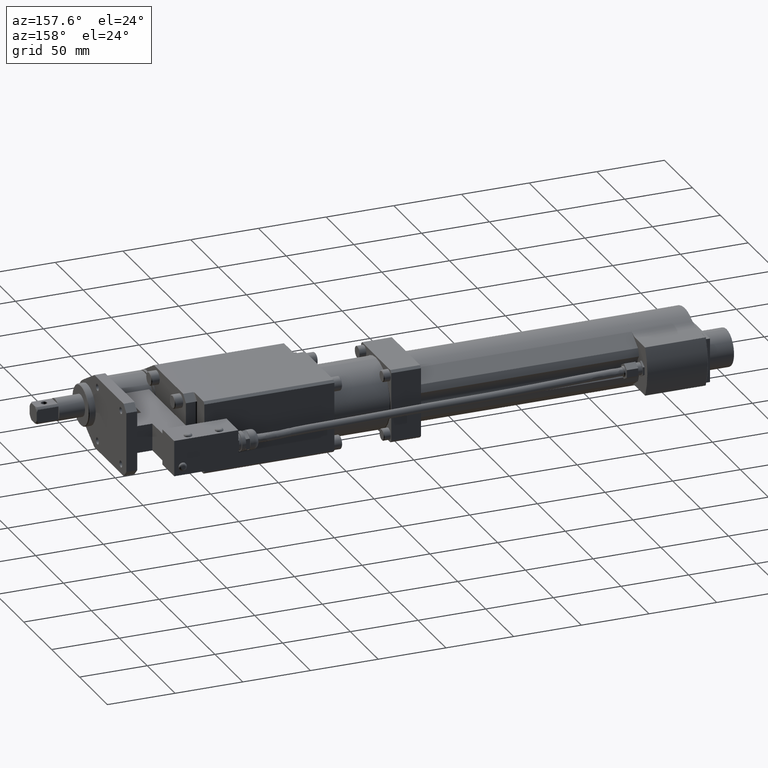
[diagram: clean part render]
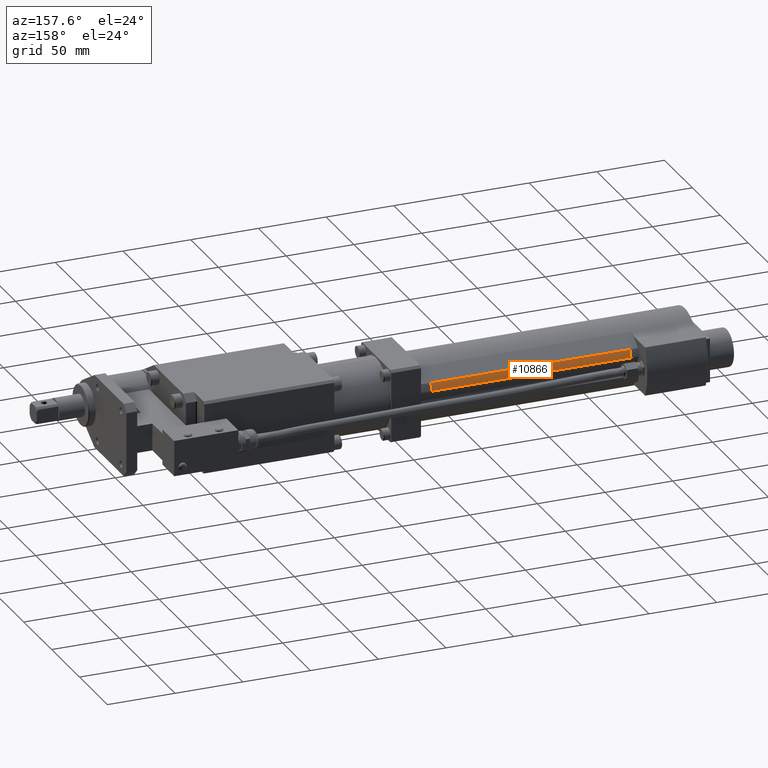
[diagram: same view with one face highlighted and labeled with its STEP entity id]
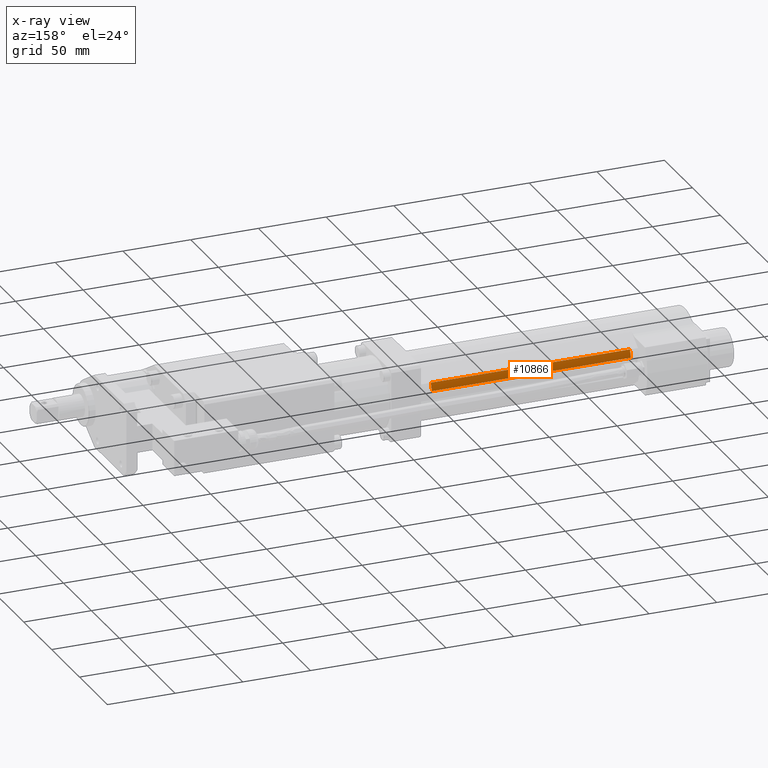
[diagram: x-ray of the same camera — body ghosted, the highlighted face saturated]
A machine part, auxiliary view. The second image highlights one B-rep face of the part: STEP entity #10866.
The next image is the same camera in x-ray: the body ghosted, the highlighted face saturated — about 0% of this face is hidden behind the body in this view.
In plain terms, the highlighted cylindrical surface (partial cylindrical patch) has radius 28 mm, axis along (1, -0, -0).
Its self-contained STEP definition (entity closure, byte-faithful):
#135 = CARTESIAN_POINT ( 'NONE',  ( -220.0000000000000300, 81.85659048000125900, 12.29414313490406700 ) ) ;
#444 = ORIENTED_EDGE ( 'NONE', *, *, #9181, .F. ) ;
#685 = CIRCLE ( 'NONE', #2310, 27.99999999999996800 ) ;
#1392 = CARTESIAN_POINT ( 'NONE',  ( -220.0000000000000300, 83.85151515151511600, 6.840703544010861700 ) ) ;
#2310 = AXIS2_PLACEMENT_3D ( 'NONE', #3466, #9417, #4341 ) ;
#2680 = CARTESIAN_POINT ( 'NONE',  ( -220.0000000000000300, 56.70000000000000300, 3.306546357697853300E-015 ) ) ;
#2757 = CARTESIAN_POINT ( 'NONE',  ( -367.0000000000000000, 83.85151515151511600, 6.840703544010861700 ) ) ;
#3217 = VECTOR ( 'NONE', #4996, 1000.000000000000000 ) ;
#3229 = VERTEX_POINT ( 'NONE', #1392 ) ;
#3443 = ORIENTED_EDGE ( 'NONE', *, *, #6782, .T. ) ;
#3466 = CARTESIAN_POINT ( 'NONE',  ( -367.0000000000000000, 56.70000000000000300, 3.306546357697853300E-015 ) ) ;
#3550 = DIRECTION ( 'NONE',  ( 0.0000000000000000000, 0.0000000000000000000, 1.000000000000000000 ) ) ;
#3600 = VERTEX_POINT ( 'NONE', #5286 ) ;
#3841 = VERTEX_POINT ( 'NONE', #5278 ) ;
#4341 = DIRECTION ( 'NONE',  ( 0.0000000000000000000, 0.0000000000000000000, 1.000000000000000000 ) ) ;
#4950 = CARTESIAN_POINT ( 'NONE',  ( -367.0000000000000000, 81.85659048000125900, 12.29414313490406700 ) ) ;
#4996 = DIRECTION ( 'NONE',  ( 1.000000000000000000, -0.0000000000000000000, -0.0000000000000000000 ) ) ;
#5011 = DIRECTION ( 'NONE',  ( 0.0000000000000000000, 0.0000000000000000000, -1.000000000000000000 ) ) ;
#5271 = ORIENTED_EDGE ( 'NONE', *, *, #6414, .F. ) ;
#5278 = CARTESIAN_POINT ( 'NONE',  ( -367.0000000000000000, 83.85151515151511600, 6.840703544010861700 ) ) ;
#5286 = CARTESIAN_POINT ( 'NONE',  ( -367.0000000000000000, 81.85659048000125900, 12.29414313490406700 ) ) ;
#5467 = LINE ( 'NONE', #4950, #3217 ) ;
#5861 = DIRECTION ( 'NONE',  ( 1.000000000000000000, -0.0000000000000000000, -0.0000000000000000000 ) ) ;
#6022 = CYLINDRICAL_SURFACE ( 'NONE', #6282, 27.99999999999996800 ) ;
#6282 = AXIS2_PLACEMENT_3D ( 'NONE', #6729, #5861, #5011 ) ;
#6414 = EDGE_CURVE ( 'NONE', #3600, #3841, #685, .T. ) ;
#6729 = CARTESIAN_POINT ( 'NONE',  ( -367.0000000000000000, 56.70000000000000300, 3.306546357697853300E-015 ) ) ;
#6782 = EDGE_CURVE ( 'NONE', #10621, #3229, #7443, .T. ) ;
#7146 = ORIENTED_EDGE ( 'NONE', *, *, #10478, .T. ) ;
#7443 = CIRCLE ( 'NONE', #7645, 27.99999999999996800 ) ;
#7645 = AXIS2_PLACEMENT_3D ( 'NONE', #2680, #8639, #3550 ) ;
#8162 = VECTOR ( 'NONE', #9537, 1000.000000000000000 ) ;
#8450 = LINE ( 'NONE', #2757, #8162 ) ;
#8639 = DIRECTION ( 'NONE',  ( -1.000000000000000000, 0.0000000000000000000, 0.0000000000000000000 ) ) ;
#9181 = EDGE_CURVE ( 'NONE', #3841, #3229, #8450, .T. ) ;
#9417 = DIRECTION ( 'NONE',  ( -1.000000000000000000, 0.0000000000000000000, 0.0000000000000000000 ) ) ;
#9537 = DIRECTION ( 'NONE',  ( 1.000000000000000000, -0.0000000000000000000, -0.0000000000000000000 ) ) ;
#10478 = EDGE_CURVE ( 'NONE', #3600, #10621, #5467, .T. ) ;
#10621 = VERTEX_POINT ( 'NONE', #135 ) ;
#10776 = FACE_OUTER_BOUND ( 'NONE', #10862, .T. ) ;
#10862 = EDGE_LOOP ( 'NONE', ( #3443, #444, #5271, #7146 ) ) ;
#10866 = ADVANCED_FACE ( 'NONE', ( #10776 ), #6022, .T. ) ;